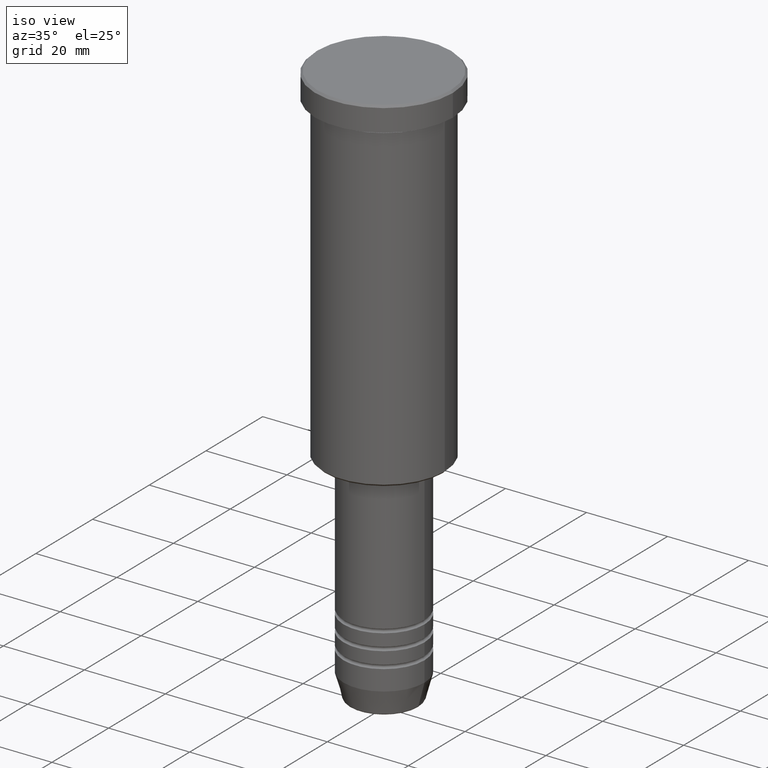
[diagram: clean part render]
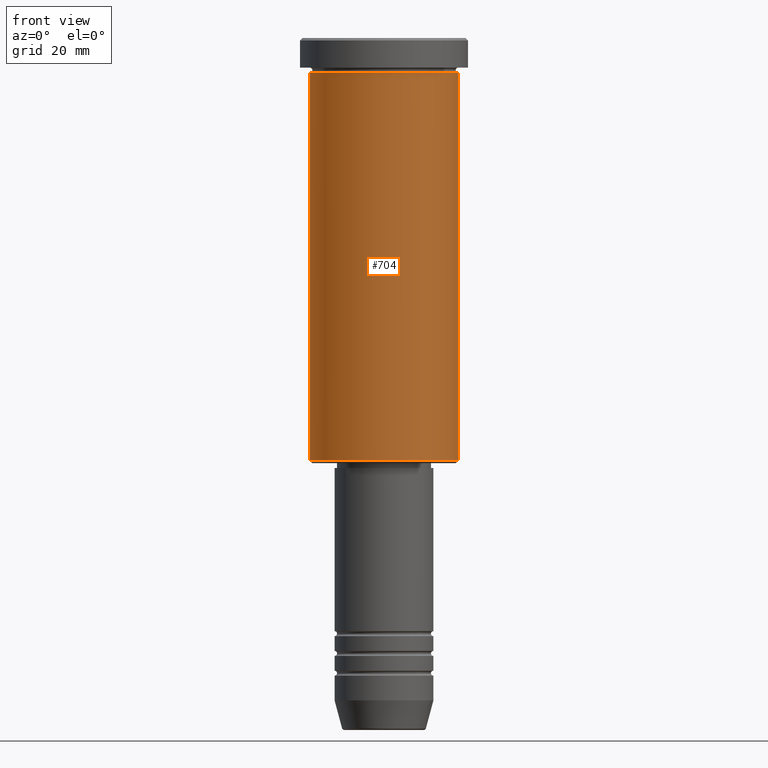
[diagram: tour spotlight — one face highlighted and labeled with its STEP entity id]
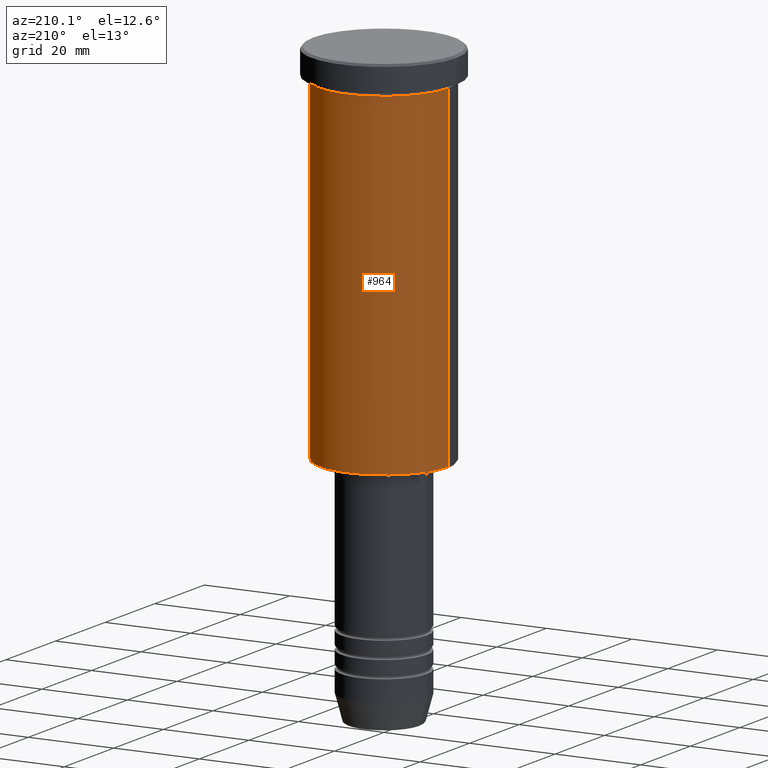
[diagram: tour spotlight — one face highlighted and labeled with its STEP entity id]
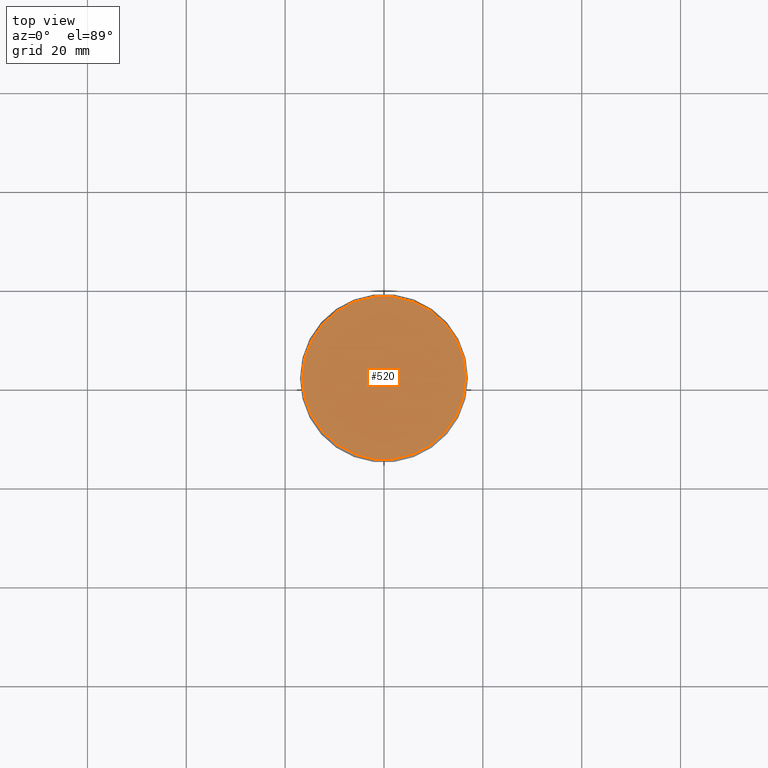
[diagram: tour spotlight — one face highlighted and labeled with its STEP entity id]
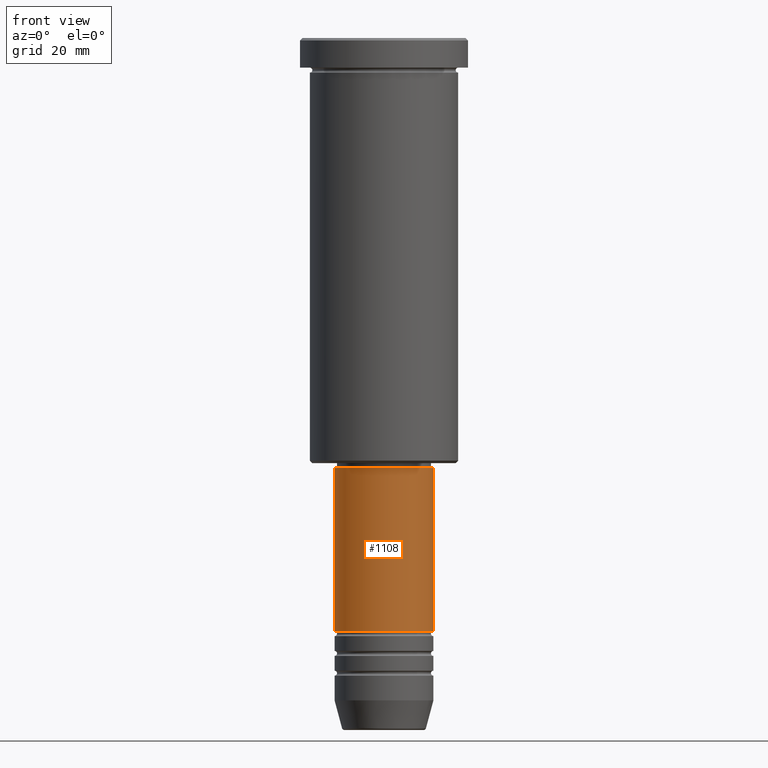
[diagram: tour spotlight — one face highlighted and labeled with its STEP entity id]
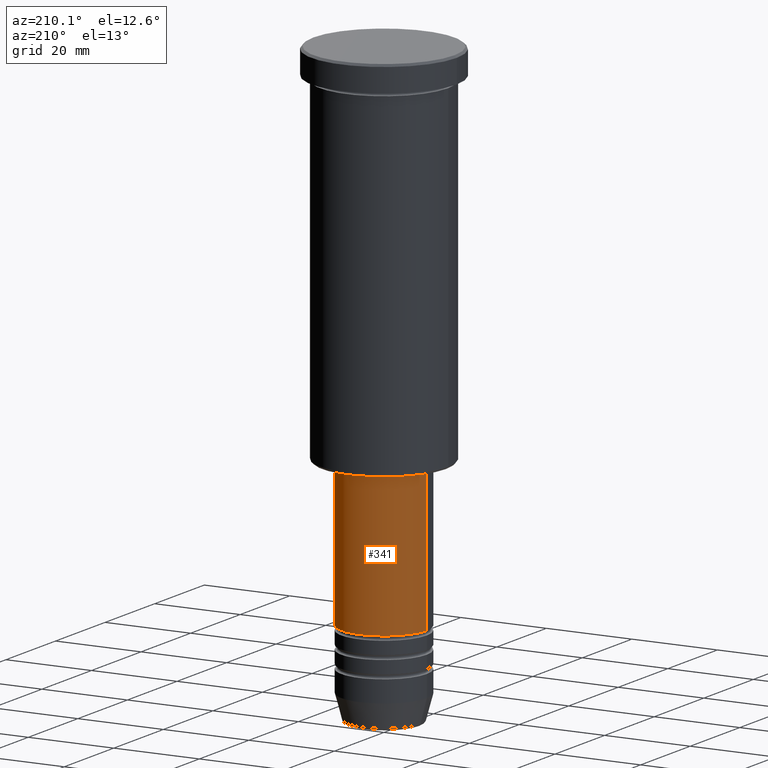
[diagram: tour spotlight — one face highlighted and labeled with its STEP entity id]
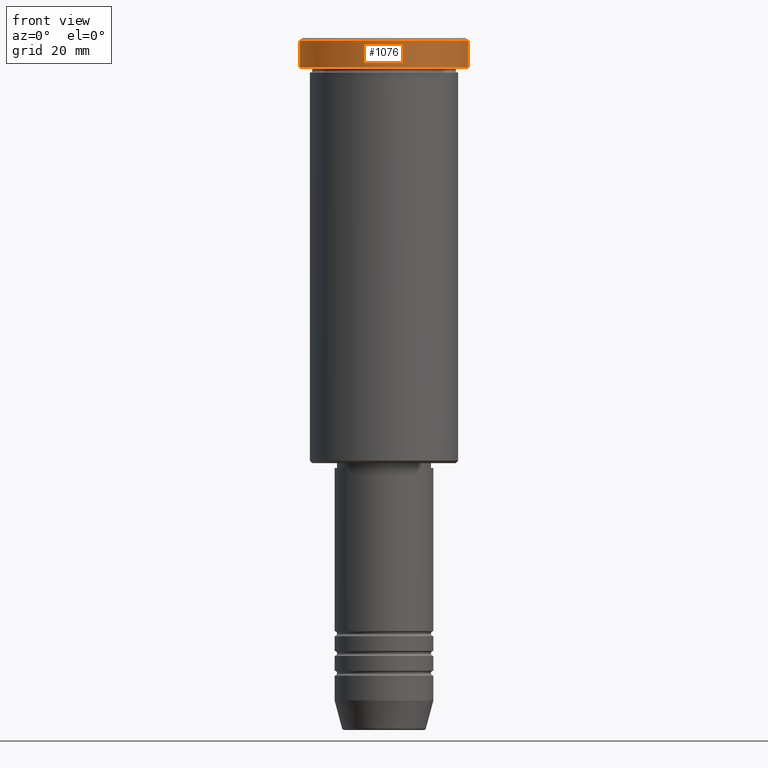
[diagram: tour spotlight — one face highlighted and labeled with its STEP entity id]
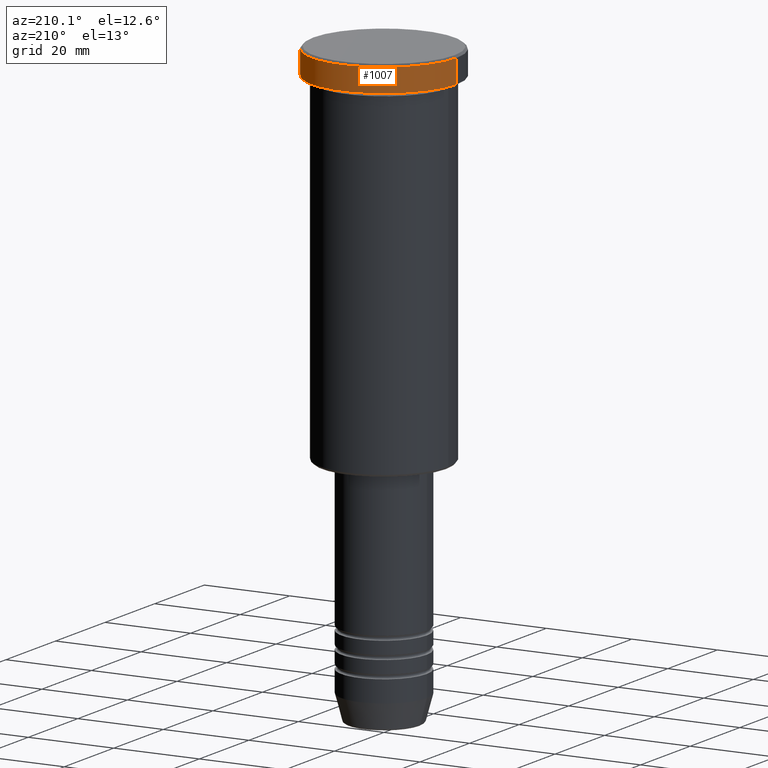
[diagram: tour spotlight — one face highlighted and labeled with its STEP entity id]
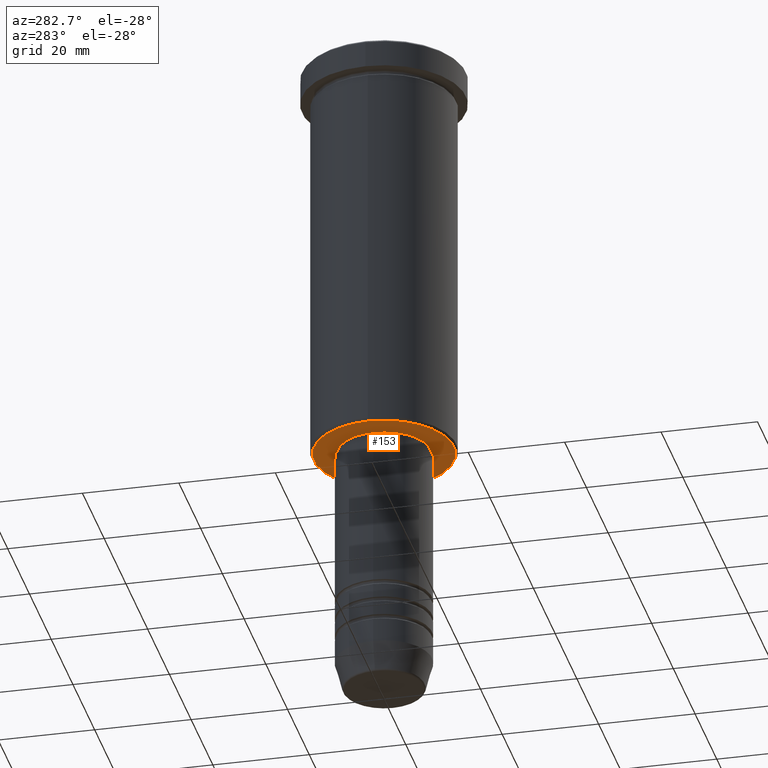
[diagram: tour spotlight — one face highlighted and labeled with its STEP entity id]
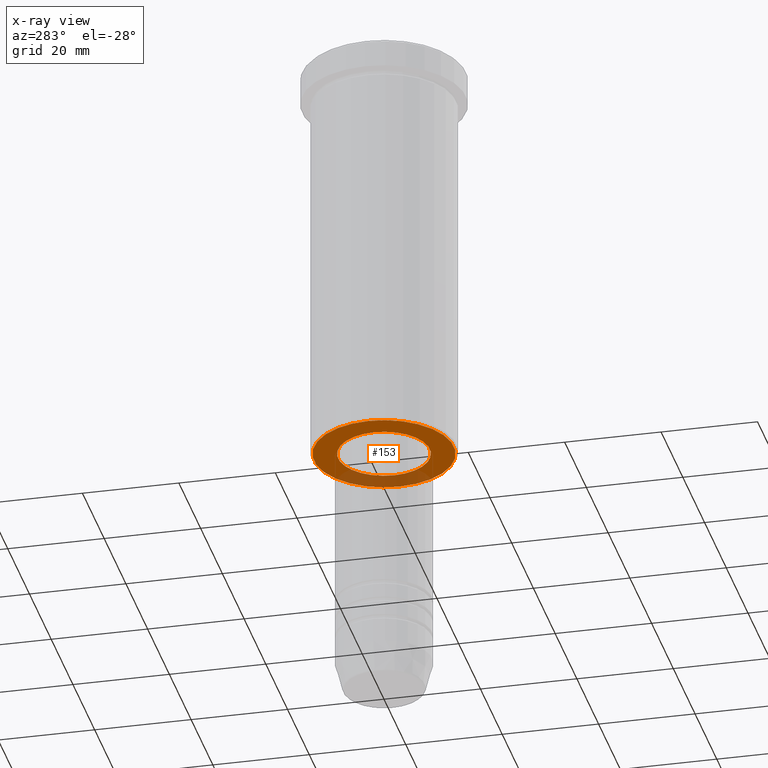
[diagram: x-ray of the same camera — body ghosted, this tour face saturated]
A machine part: a face-by-face anatomy tour. The part has 43 B-rep faces; the first image is the clean iso view, then the 8 largest visible faces are spotlighted one at a time (largest first), each with its STEP entity span.

Face 1 — front view, entity #704. In plain terms, the highlighted cylindrical surface (partial cylindrical patch) has radius 15 mm, axis along (-0, -0, 1).
Definition (entity closure, byte-faithful):
#3 = VERTEX_POINT ( 'NONE', #241 ) ;
#34 = CARTESIAN_POINT ( 'NONE',  ( 0.000000000000000000, 0.000000000000000000, -6.999999999999995559 ) ) ;
#82 = EDGE_CURVE ( 'NONE', #207, #512, #699, .T. ) ;
#161 = CARTESIAN_POINT ( 'NONE',  ( 15.00000000000000000, 0.000000000000000000, -6.999999999999995559 ) ) ;
#194 = FACE_OUTER_BOUND ( 'NONE', #827, .T. ) ;
#207 = VERTEX_POINT ( 'NONE', #1134 ) ;
#220 = ORIENTED_EDGE ( 'NONE', *, *, #82, .F. ) ;
#241 = CARTESIAN_POINT ( 'NONE',  ( 15.00000000000000000, 0.000000000000000000, -85.50000000000000000 ) ) ;
#280 = EDGE_CURVE ( 'NONE', #3, #512, #1126, .T. ) ;
#281 = DIRECTION ( 'NONE',  ( -0.000000000000000000, -0.000000000000000000, 1.000000000000000000 ) ) ;
#290 = VECTOR ( 'NONE', #691, 1000.000000000000000 ) ;
#300 = CARTESIAN_POINT ( 'NONE',  ( 0.000000000000000000, 0.000000000000000000, -85.50000000000000000 ) ) ;
#359 = LINE ( 'NONE', #836, #1181 ) ;
#373 = DIRECTION ( 'NONE',  ( 1.000000000000000000, 0.000000000000000000, 0.000000000000000000 ) ) ;
#378 = CIRCLE ( 'NONE', #499, 15.00000000000000000 ) ;
#425 = DIRECTION ( 'NONE',  ( -0.000000000000000000, -0.000000000000000000, 1.000000000000000000 ) ) ;
#429 = EDGE_CURVE ( 'NONE', #440, #3, #378, .T. ) ;
#440 = VERTEX_POINT ( 'NONE', #797 ) ;
#471 = DIRECTION ( 'NONE',  ( -0.000000000000000000, -0.000000000000000000, 1.000000000000000000 ) ) ;
#499 = AXIS2_PLACEMENT_3D ( 'NONE', #300, #425, #596 ) ;
#512 = VERTEX_POINT ( 'NONE', #161 ) ;
#596 = DIRECTION ( 'NONE',  ( -1.000000000000000000, 0.000000000000000000, 0.000000000000000000 ) ) ;
#609 = ORIENTED_EDGE ( 'NONE', *, *, #975, .F. ) ;
#610 = DIRECTION ( 'NONE',  ( 1.000000000000000000, 0.000000000000000000, 0.000000000000000000 ) ) ;
#663 = AXIS2_PLACEMENT_3D ( 'NONE', #1159, #281, #373 ) ;
#691 = DIRECTION ( 'NONE',  ( -0.000000000000000000, -0.000000000000000000, 1.000000000000000000 ) ) ;
#699 = CIRCLE ( 'NONE', #918, 15.00000000000000000 ) ;
#704 = ADVANCED_FACE ( 'NONE', ( #194 ), #1073, .T. ) ;
#705 = DIRECTION ( 'NONE',  ( -0.000000000000000000, -0.000000000000000000, 1.000000000000000000 ) ) ;
#794 = ORIENTED_EDGE ( 'NONE', *, *, #280, .T. ) ;
#797 = CARTESIAN_POINT ( 'NONE',  ( -15.00000000000000000, 1.836970198721029589E-15, -85.50000000000000000 ) ) ;
#827 = EDGE_LOOP ( 'NONE', ( #609, #957, #794, #220 ) ) ;
#836 = CARTESIAN_POINT ( 'NONE',  ( -15.00000000000000000, 1.836970198721029589E-15, 0.000000000000000000 ) ) ;
#918 = AXIS2_PLACEMENT_3D ( 'NONE', #34, #705, #610 ) ;
#957 = ORIENTED_EDGE ( 'NONE', *, *, #429, .T. ) ;
#975 = EDGE_CURVE ( 'NONE', #440, #207, #359, .T. ) ;
#1054 = CARTESIAN_POINT ( 'NONE',  ( 15.00000000000000000, 0.000000000000000000, 0.000000000000000000 ) ) ;
#1073 = CYLINDRICAL_SURFACE ( 'NONE', #663, 15.00000000000000000 ) ;
#1126 = LINE ( 'NONE', #1054, #290 ) ;
#1134 = CARTESIAN_POINT ( 'NONE',  ( -15.00000000000000000, 1.836970198721029589E-15, -6.999999999999995559 ) ) ;
#1159 = CARTESIAN_POINT ( 'NONE',  ( 0.000000000000000000, 0.000000000000000000, 0.000000000000000000 ) ) ;
#1181 = VECTOR ( 'NONE', #471, 1000.000000000000000 ) ;

Face 2 — auxiliary view, entity #964. In plain terms, the highlighted cylindrical surface (partial cylindrical patch) has radius 15 mm, axis along (-0, -0, 1).
Definition (entity closure, byte-faithful):
#3 = VERTEX_POINT ( 'NONE', #241 ) ;
#24 = ORIENTED_EDGE ( 'NONE', *, *, #975, .T. ) ;
#65 = ORIENTED_EDGE ( 'NONE', *, *, #280, .F. ) ;
#90 = EDGE_CURVE ( 'NONE', #512, #207, #819, .T. ) ;
#150 = CARTESIAN_POINT ( 'NONE',  ( 0.000000000000000000, 0.000000000000000000, -6.999999999999995559 ) ) ;
#161 = CARTESIAN_POINT ( 'NONE',  ( 15.00000000000000000, 0.000000000000000000, -6.999999999999995559 ) ) ;
#180 = CARTESIAN_POINT ( 'NONE',  ( 0.000000000000000000, 0.000000000000000000, 0.000000000000000000 ) ) ;
#205 = CARTESIAN_POINT ( 'NONE',  ( 0.000000000000000000, 0.000000000000000000, -85.50000000000000000 ) ) ;
#207 = VERTEX_POINT ( 'NONE', #1134 ) ;
#241 = CARTESIAN_POINT ( 'NONE',  ( 15.00000000000000000, 0.000000000000000000, -85.50000000000000000 ) ) ;
#275 = CIRCLE ( 'NONE', #934, 15.00000000000000000 ) ;
#280 = EDGE_CURVE ( 'NONE', #3, #512, #1126, .T. ) ;
#290 = VECTOR ( 'NONE', #691, 1000.000000000000000 ) ;
#359 = LINE ( 'NONE', #836, #1181 ) ;
#370 = EDGE_CURVE ( 'NONE', #3, #440, #275, .T. ) ;
#386 = EDGE_LOOP ( 'NONE', ( #1022, #24, #415, #65 ) ) ;
#415 = ORIENTED_EDGE ( 'NONE', *, *, #90, .F. ) ;
#440 = VERTEX_POINT ( 'NONE', #797 ) ;
#471 = DIRECTION ( 'NONE',  ( -0.000000000000000000, -0.000000000000000000, 1.000000000000000000 ) ) ;
#512 = VERTEX_POINT ( 'NONE', #161 ) ;
#528 = CYLINDRICAL_SURFACE ( 'NONE', #835, 15.00000000000000000 ) ;
#558 = AXIS2_PLACEMENT_3D ( 'NONE', #150, #618, #944 ) ;
#570 = DIRECTION ( 'NONE',  ( -0.000000000000000000, -0.000000000000000000, 1.000000000000000000 ) ) ;
#618 = DIRECTION ( 'NONE',  ( -0.000000000000000000, -0.000000000000000000, 1.000000000000000000 ) ) ;
#641 = FACE_OUTER_BOUND ( 'NONE', #386, .T. ) ;
#691 = DIRECTION ( 'NONE',  ( -0.000000000000000000, -0.000000000000000000, 1.000000000000000000 ) ) ;
#765 = DIRECTION ( 'NONE',  ( 1.000000000000000000, 0.000000000000000000, 0.000000000000000000 ) ) ;
#797 = CARTESIAN_POINT ( 'NONE',  ( -15.00000000000000000, 1.836970198721029589E-15, -85.50000000000000000 ) ) ;
#819 = CIRCLE ( 'NONE', #558, 15.00000000000000000 ) ;
#835 = AXIS2_PLACEMENT_3D ( 'NONE', #180, #909, #765 ) ;
#836 = CARTESIAN_POINT ( 'NONE',  ( -15.00000000000000000, 1.836970198721029589E-15, 0.000000000000000000 ) ) ;
#909 = DIRECTION ( 'NONE',  ( -0.000000000000000000, -0.000000000000000000, 1.000000000000000000 ) ) ;
#934 = AXIS2_PLACEMENT_3D ( 'NONE', #205, #570, #936 ) ;
#936 = DIRECTION ( 'NONE',  ( -1.000000000000000000, 0.000000000000000000, 0.000000000000000000 ) ) ;
#944 = DIRECTION ( 'NONE',  ( 1.000000000000000000, 0.000000000000000000, 0.000000000000000000 ) ) ;
#964 = ADVANCED_FACE ( 'NONE', ( #641 ), #528, .T. ) ;
#975 = EDGE_CURVE ( 'NONE', #440, #207, #359, .T. ) ;
#1022 = ORIENTED_EDGE ( 'NONE', *, *, #370, .T. ) ;
#1054 = CARTESIAN_POINT ( 'NONE',  ( 15.00000000000000000, 0.000000000000000000, 0.000000000000000000 ) ) ;
#1126 = LINE ( 'NONE', #1054, #290 ) ;
#1134 = CARTESIAN_POINT ( 'NONE',  ( -15.00000000000000000, 1.836970198721029589E-15, -6.999999999999995559 ) ) ;
#1181 = VECTOR ( 'NONE', #471, 1000.000000000000000 ) ;

Face 3 — top view, entity #520. In plain terms, the highlighted planar face has unit normal (0, -0, 1).
Definition (entity closure, byte-faithful):
#14 = EDGE_LOOP ( 'NONE', ( #917, #47 ) ) ;
#37 = PLANE ( 'NONE',  #662 ) ;
#41 = CARTESIAN_POINT ( 'NONE',  ( 0.000000000000000000, 0.000000000000000000, 0.000000000000000000 ) ) ;
#47 = ORIENTED_EDGE ( 'NONE', *, *, #557, .T. ) ;
#85 = AXIS2_PLACEMENT_3D ( 'NONE', #755, #427, #792 ) ;
#152 = CARTESIAN_POINT ( 'NONE',  ( 16.49999999999998579, 2.051283388571816098E-15, 0.000000000000000000 ) ) ;
#198 = AXIS2_PLACEMENT_3D ( 'NONE', #367, #282, #656 ) ;
#253 = CIRCLE ( 'NONE', #85, 16.49999999999998579 ) ;
#279 = VERTEX_POINT ( 'NONE', #152 ) ;
#282 = DIRECTION ( 'NONE',  ( -0.000000000000000000, -0.000000000000000000, 1.000000000000000000 ) ) ;
#367 = CARTESIAN_POINT ( 'NONE',  ( 0.000000000000000000, 0.000000000000000000, 0.000000000000000000 ) ) ;
#427 = DIRECTION ( 'NONE',  ( -0.000000000000000000, -0.000000000000000000, 1.000000000000000000 ) ) ;
#520 = ADVANCED_FACE ( 'NONE', ( #981 ), #37, .T. ) ;
#557 = EDGE_CURVE ( 'NONE', #279, #740, #253, .T. ) ;
#621 = CARTESIAN_POINT ( 'NONE',  ( -16.49999999999998579, 0.000000000000000000, 0.000000000000000000 ) ) ;
#656 = DIRECTION ( 'NONE',  ( 1.000000000000000000, 0.000000000000000000, 0.000000000000000000 ) ) ;
#662 = AXIS2_PLACEMENT_3D ( 'NONE', #41, #696, #1018 ) ;
#696 = DIRECTION ( 'NONE',  ( 0.000000000000000000, -0.000000000000000000, 1.000000000000000000 ) ) ;
#740 = VERTEX_POINT ( 'NONE', #621 ) ;
#755 = CARTESIAN_POINT ( 'NONE',  ( 0.000000000000000000, 0.000000000000000000, 0.000000000000000000 ) ) ;
#792 = DIRECTION ( 'NONE',  ( 1.000000000000000000, 0.000000000000000000, 0.000000000000000000 ) ) ;
#917 = ORIENTED_EDGE ( 'NONE', *, *, #1083, .T. ) ;
#981 = FACE_OUTER_BOUND ( 'NONE', #14, .T. ) ;
#1018 = DIRECTION ( 'NONE',  ( 1.000000000000000000, 0.000000000000000000, 0.000000000000000000 ) ) ;
#1047 = CIRCLE ( 'NONE', #198, 16.49999999999998579 ) ;
#1083 = EDGE_CURVE ( 'NONE', #740, #279, #1047, .T. ) ;

Face 4 — front view, entity #1108. In plain terms, the highlighted cylindrical surface (partial cylindrical patch) has radius 10 mm, axis along (-0, -0, 1).
Definition (entity closure, byte-faithful):
#7 = CARTESIAN_POINT ( 'NONE',  ( 10.00000000000000000, 0.000000000000000000, 0.000000000000000000 ) ) ;
#9 = DIRECTION ( 'NONE',  ( 1.000000000000000000, 0.000000000000000000, 0.000000000000000000 ) ) ;
#32 = AXIS2_PLACEMENT_3D ( 'NONE', #453, #255, #551 ) ;
#81 = CIRCLE ( 'NONE', #462, 9.999999999999998224 ) ;
#146 = EDGE_CURVE ( 'NONE', #592, #523, #251, .T. ) ;
#155 = VERTEX_POINT ( 'NONE', #565 ) ;
#181 = ORIENTED_EDGE ( 'NONE', *, *, #146, .F. ) ;
#203 = EDGE_CURVE ( 'NONE', #523, #693, #81, .T. ) ;
#251 = LINE ( 'NONE', #813, #1084 ) ;
#255 = DIRECTION ( 'NONE',  ( -0.000000000000000000, -0.000000000000000000, 1.000000000000000000 ) ) ;
#297 = DIRECTION ( 'NONE',  ( -0.000000000000000000, -0.000000000000000000, 1.000000000000000000 ) ) ;
#319 = EDGE_CURVE ( 'NONE', #155, #693, #840, .T. ) ;
#377 = DIRECTION ( 'NONE',  ( -0.000000000000000000, -0.000000000000000000, 1.000000000000000000 ) ) ;
#392 = DIRECTION ( 'NONE',  ( 1.000000000000000000, 0.000000000000000000, 0.000000000000000000 ) ) ;
#395 = EDGE_LOOP ( 'NONE', ( #181, #1109, #538, #450 ) ) ;
#424 = CARTESIAN_POINT ( 'NONE',  ( 0.000000000000000000, 0.000000000000000000, -87.00000000000002842 ) ) ;
#450 = ORIENTED_EDGE ( 'NONE', *, *, #203, .F. ) ;
#453 = CARTESIAN_POINT ( 'NONE',  ( 0.000000000000000000, 0.000000000000000000, -120.0000000000000000 ) ) ;
#456 = CARTESIAN_POINT ( 'NONE',  ( -10.00000000000000178, 1.224646799147353454E-15, -120.0000000000000000 ) ) ;
#462 = AXIS2_PLACEMENT_3D ( 'NONE', #424, #789, #392 ) ;
#523 = VERTEX_POINT ( 'NONE', #669 ) ;
#538 = ORIENTED_EDGE ( 'NONE', *, *, #319, .T. ) ;
#550 = CARTESIAN_POINT ( 'NONE',  ( 9.999999999999998224, 0.000000000000000000, -87.00000000000002842 ) ) ;
#551 = DIRECTION ( 'NONE',  ( 1.000000000000000000, 0.000000000000000000, 0.000000000000000000 ) ) ;
#565 = CARTESIAN_POINT ( 'NONE',  ( 10.00000000000000178, 0.000000000000000000, -120.0000000000000000 ) ) ;
#576 = VECTOR ( 'NONE', #377, 1000.000000000000000 ) ;
#592 = VERTEX_POINT ( 'NONE', #456 ) ;
#649 = CIRCLE ( 'NONE', #32, 10.00000000000000178 ) ;
#669 = CARTESIAN_POINT ( 'NONE',  ( -9.999999999999998224, 1.224646799147353256E-15, -87.00000000000002842 ) ) ;
#682 = AXIS2_PLACEMENT_3D ( 'NONE', #929, #297, #9 ) ;
#693 = VERTEX_POINT ( 'NONE', #550 ) ;
#741 = EDGE_CURVE ( 'NONE', #592, #155, #649, .T. ) ;
#789 = DIRECTION ( 'NONE',  ( -0.000000000000000000, -0.000000000000000000, 1.000000000000000000 ) ) ;
#813 = CARTESIAN_POINT ( 'NONE',  ( -10.00000000000000000, 1.224646799147353256E-15, 0.000000000000000000 ) ) ;
#839 = FACE_OUTER_BOUND ( 'NONE', #395, .T. ) ;
#840 = LINE ( 'NONE', #7, #576 ) ;
#929 = CARTESIAN_POINT ( 'NONE',  ( 0.000000000000000000, 0.000000000000000000, 0.000000000000000000 ) ) ;
#1021 = CYLINDRICAL_SURFACE ( 'NONE', #682, 10.00000000000000000 ) ;
#1084 = VECTOR ( 'NONE', #1151, 1000.000000000000000 ) ;
#1108 = ADVANCED_FACE ( 'NONE', ( #839 ), #1021, .T. ) ;
#1109 = ORIENTED_EDGE ( 'NONE', *, *, #741, .T. ) ;
#1151 = DIRECTION ( 'NONE',  ( -0.000000000000000000, -0.000000000000000000, 1.000000000000000000 ) ) ;

Face 5 — auxiliary view, entity #341. In plain terms, the highlighted cylindrical surface (partial cylindrical patch) has radius 10 mm, axis along (-0, -0, 1).
Definition (entity closure, byte-faithful):
#7 = CARTESIAN_POINT ( 'NONE',  ( 10.00000000000000000, 0.000000000000000000, 0.000000000000000000 ) ) ;
#8 = DIRECTION ( 'NONE',  ( -0.000000000000000000, -0.000000000000000000, 1.000000000000000000 ) ) ;
#67 = DIRECTION ( 'NONE',  ( 1.000000000000000000, 0.000000000000000000, 0.000000000000000000 ) ) ;
#114 = DIRECTION ( 'NONE',  ( 1.000000000000000000, 0.000000000000000000, 0.000000000000000000 ) ) ;
#124 = DIRECTION ( 'NONE',  ( 1.000000000000000000, 0.000000000000000000, 0.000000000000000000 ) ) ;
#127 = EDGE_CURVE ( 'NONE', #693, #523, #134, .T. ) ;
#134 = CIRCLE ( 'NONE', #443, 9.999999999999998224 ) ;
#146 = EDGE_CURVE ( 'NONE', #592, #523, #251, .T. ) ;
#155 = VERTEX_POINT ( 'NONE', #565 ) ;
#162 = AXIS2_PLACEMENT_3D ( 'NONE', #472, #436, #67 ) ;
#221 = ORIENTED_EDGE ( 'NONE', *, *, #146, .T. ) ;
#251 = LINE ( 'NONE', #813, #1084 ) ;
#266 = CYLINDRICAL_SURFACE ( 'NONE', #479, 10.00000000000000000 ) ;
#319 = EDGE_CURVE ( 'NONE', #155, #693, #840, .T. ) ;
#341 = ADVANCED_FACE ( 'NONE', ( #366 ), #266, .T. ) ;
#366 = FACE_OUTER_BOUND ( 'NONE', #856, .T. ) ;
#377 = DIRECTION ( 'NONE',  ( -0.000000000000000000, -0.000000000000000000, 1.000000000000000000 ) ) ;
#436 = DIRECTION ( 'NONE',  ( -0.000000000000000000, -0.000000000000000000, 1.000000000000000000 ) ) ;
#443 = AXIS2_PLACEMENT_3D ( 'NONE', #1125, #806, #124 ) ;
#456 = CARTESIAN_POINT ( 'NONE',  ( -10.00000000000000178, 1.224646799147353454E-15, -120.0000000000000000 ) ) ;
#472 = CARTESIAN_POINT ( 'NONE',  ( 0.000000000000000000, 0.000000000000000000, -120.0000000000000000 ) ) ;
#479 = AXIS2_PLACEMENT_3D ( 'NONE', #643, #8, #114 ) ;
#489 = ORIENTED_EDGE ( 'NONE', *, *, #319, .F. ) ;
#500 = CIRCLE ( 'NONE', #162, 10.00000000000000178 ) ;
#523 = VERTEX_POINT ( 'NONE', #669 ) ;
#550 = CARTESIAN_POINT ( 'NONE',  ( 9.999999999999998224, 0.000000000000000000, -87.00000000000002842 ) ) ;
#565 = CARTESIAN_POINT ( 'NONE',  ( 10.00000000000000178, 0.000000000000000000, -120.0000000000000000 ) ) ;
#576 = VECTOR ( 'NONE', #377, 1000.000000000000000 ) ;
#592 = VERTEX_POINT ( 'NONE', #456 ) ;
#642 = EDGE_CURVE ( 'NONE', #155, #592, #500, .T. ) ;
#643 = CARTESIAN_POINT ( 'NONE',  ( 0.000000000000000000, 0.000000000000000000, 0.000000000000000000 ) ) ;
#669 = CARTESIAN_POINT ( 'NONE',  ( -9.999999999999998224, 1.224646799147353256E-15, -87.00000000000002842 ) ) ;
#693 = VERTEX_POINT ( 'NONE', #550 ) ;
#806 = DIRECTION ( 'NONE',  ( -0.000000000000000000, -0.000000000000000000, 1.000000000000000000 ) ) ;
#813 = CARTESIAN_POINT ( 'NONE',  ( -10.00000000000000000, 1.224646799147353256E-15, 0.000000000000000000 ) ) ;
#840 = LINE ( 'NONE', #7, #576 ) ;
#856 = EDGE_LOOP ( 'NONE', ( #1104, #221, #1032, #489 ) ) ;
#1032 = ORIENTED_EDGE ( 'NONE', *, *, #127, .F. ) ;
#1084 = VECTOR ( 'NONE', #1151, 1000.000000000000000 ) ;
#1104 = ORIENTED_EDGE ( 'NONE', *, *, #642, .T. ) ;
#1125 = CARTESIAN_POINT ( 'NONE',  ( 0.000000000000000000, 0.000000000000000000, -87.00000000000002842 ) ) ;
#1151 = DIRECTION ( 'NONE',  ( -0.000000000000000000, -0.000000000000000000, 1.000000000000000000 ) ) ;

Face 6 — front view, entity #1076. In plain terms, the highlighted cylindrical surface (partial cylindrical patch) has radius 17 mm, axis along (-0, -0, 1).
Definition (entity closure, byte-faithful):
#1 = CARTESIAN_POINT ( 'NONE',  ( 0.000000000000000000, 0.000000000000000000, 0.000000000000000000 ) ) ;
#4 = CARTESIAN_POINT ( 'NONE',  ( 0.000000000000000000, 0.000000000000000000, -5.999999999999994671 ) ) ;
#33 = EDGE_LOOP ( 'NONE', ( #344, #876, #1142, #529 ) ) ;
#40 = VERTEX_POINT ( 'NONE', #1043 ) ;
#200 = DIRECTION ( 'NONE',  ( 1.000000000000000000, 0.000000000000000000, 0.000000000000000000 ) ) ;
#233 = VERTEX_POINT ( 'NONE', #786 ) ;
#238 = DIRECTION ( 'NONE',  ( 1.000000000000000000, 0.000000000000000000, 0.000000000000000000 ) ) ;
#267 = CARTESIAN_POINT ( 'NONE',  ( 0.000000000000000000, 0.000000000000000000, -0.5000000000000350830 ) ) ;
#287 = DIRECTION ( 'NONE',  ( -0.000000000000000000, -0.000000000000000000, 1.000000000000000000 ) ) ;
#304 = EDGE_CURVE ( 'NONE', #1123, #410, #305, .T. ) ;
#305 = CIRCLE ( 'NONE', #444, 17.00000000000000000 ) ;
#344 = ORIENTED_EDGE ( 'NONE', *, *, #1093, .F. ) ;
#410 = VERTEX_POINT ( 'NONE', #1101 ) ;
#444 = AXIS2_PLACEMENT_3D ( 'NONE', #4, #287, #200 ) ;
#475 = LINE ( 'NONE', #842, #702 ) ;
#529 = ORIENTED_EDGE ( 'NONE', *, *, #871, .T. ) ;
#562 = DIRECTION ( 'NONE',  ( -0.000000000000000000, -0.000000000000000000, 1.000000000000000000 ) ) ;
#670 = LINE ( 'NONE', #684, #935 ) ;
#681 = AXIS2_PLACEMENT_3D ( 'NONE', #267, #1152, #238 ) ;
#684 = CARTESIAN_POINT ( 'NONE',  ( 17.00000000000000000, 0.000000000000000000, 0.000000000000000000 ) ) ;
#702 = VECTOR ( 'NONE', #562, 1000.000000000000000 ) ;
#753 = DIRECTION ( 'NONE',  ( -0.000000000000000000, -0.000000000000000000, 1.000000000000000000 ) ) ;
#764 = CIRCLE ( 'NONE', #681, 17.00000000000000000 ) ;
#779 = EDGE_CURVE ( 'NONE', #410, #233, #670, .T. ) ;
#786 = CARTESIAN_POINT ( 'NONE',  ( 17.00000000000000000, 0.000000000000000000, -0.5000000000000350830 ) ) ;
#842 = CARTESIAN_POINT ( 'NONE',  ( -17.00000000000000000, 2.081899558550500280E-15, 0.000000000000000000 ) ) ;
#865 = AXIS2_PLACEMENT_3D ( 'NONE', #1, #753, #1015 ) ;
#871 = EDGE_CURVE ( 'NONE', #233, #40, #764, .T. ) ;
#876 = ORIENTED_EDGE ( 'NONE', *, *, #304, .T. ) ;
#887 = CARTESIAN_POINT ( 'NONE',  ( -17.00000000000000000, 2.081899558550500280E-15, -5.999999999999994671 ) ) ;
#935 = VECTOR ( 'NONE', #1031, 1000.000000000000000 ) ;
#999 = CYLINDRICAL_SURFACE ( 'NONE', #865, 17.00000000000000000 ) ;
#1015 = DIRECTION ( 'NONE',  ( 1.000000000000000000, 0.000000000000000000, 0.000000000000000000 ) ) ;
#1031 = DIRECTION ( 'NONE',  ( -0.000000000000000000, -0.000000000000000000, 1.000000000000000000 ) ) ;
#1043 = CARTESIAN_POINT ( 'NONE',  ( -17.00000000000000000, 2.081899558550500280E-15, -0.5000000000000350830 ) ) ;
#1076 = ADVANCED_FACE ( 'NONE', ( #1085 ), #999, .T. ) ;
#1085 = FACE_OUTER_BOUND ( 'NONE', #33, .T. ) ;
#1093 = EDGE_CURVE ( 'NONE', #1123, #40, #475, .T. ) ;
#1101 = CARTESIAN_POINT ( 'NONE',  ( 17.00000000000000000, 0.000000000000000000, -5.999999999999994671 ) ) ;
#1123 = VERTEX_POINT ( 'NONE', #887 ) ;
#1142 = ORIENTED_EDGE ( 'NONE', *, *, #779, .T. ) ;
#1152 = DIRECTION ( 'NONE',  ( 0.000000000000000000, 0.000000000000000000, -1.000000000000000000 ) ) ;

Face 7 — auxiliary view, entity #1007. In plain terms, the highlighted cylindrical surface (partial cylindrical patch) has radius 17 mm, axis along (-0, -0, 1).
Definition (entity closure, byte-faithful):
#6 = CYLINDRICAL_SURFACE ( 'NONE', #1099, 17.00000000000000000 ) ;
#12 = AXIS2_PLACEMENT_3D ( 'NONE', #796, #963, #946 ) ;
#40 = VERTEX_POINT ( 'NONE', #1043 ) ;
#89 = DIRECTION ( 'NONE',  ( 1.000000000000000000, 0.000000000000000000, 0.000000000000000000 ) ) ;
#110 = CARTESIAN_POINT ( 'NONE',  ( 0.000000000000000000, 0.000000000000000000, 0.000000000000000000 ) ) ;
#233 = VERTEX_POINT ( 'NONE', #786 ) ;
#257 = EDGE_CURVE ( 'NONE', #40, #233, #326, .T. ) ;
#258 = ORIENTED_EDGE ( 'NONE', *, *, #779, .F. ) ;
#272 = EDGE_CURVE ( 'NONE', #410, #1123, #1138, .T. ) ;
#309 = ORIENTED_EDGE ( 'NONE', *, *, #272, .T. ) ;
#320 = EDGE_LOOP ( 'NONE', ( #309, #1082, #716, #258 ) ) ;
#326 = CIRCLE ( 'NONE', #761, 17.00000000000000000 ) ;
#410 = VERTEX_POINT ( 'NONE', #1101 ) ;
#475 = LINE ( 'NONE', #842, #702 ) ;
#509 = CARTESIAN_POINT ( 'NONE',  ( 0.000000000000000000, 0.000000000000000000, -0.5000000000000350830 ) ) ;
#562 = DIRECTION ( 'NONE',  ( -0.000000000000000000, -0.000000000000000000, 1.000000000000000000 ) ) ;
#589 = DIRECTION ( 'NONE',  ( 1.000000000000000000, 0.000000000000000000, 0.000000000000000000 ) ) ;
#670 = LINE ( 'NONE', #684, #935 ) ;
#684 = CARTESIAN_POINT ( 'NONE',  ( 17.00000000000000000, 0.000000000000000000, 0.000000000000000000 ) ) ;
#702 = VECTOR ( 'NONE', #562, 1000.000000000000000 ) ;
#716 = ORIENTED_EDGE ( 'NONE', *, *, #257, .T. ) ;
#761 = AXIS2_PLACEMENT_3D ( 'NONE', #509, #1119, #589 ) ;
#779 = EDGE_CURVE ( 'NONE', #410, #233, #670, .T. ) ;
#786 = CARTESIAN_POINT ( 'NONE',  ( 17.00000000000000000, 0.000000000000000000, -0.5000000000000350830 ) ) ;
#796 = CARTESIAN_POINT ( 'NONE',  ( 0.000000000000000000, 0.000000000000000000, -5.999999999999994671 ) ) ;
#842 = CARTESIAN_POINT ( 'NONE',  ( -17.00000000000000000, 2.081899558550500280E-15, 0.000000000000000000 ) ) ;
#887 = CARTESIAN_POINT ( 'NONE',  ( -17.00000000000000000, 2.081899558550500280E-15, -5.999999999999994671 ) ) ;
#914 = DIRECTION ( 'NONE',  ( -0.000000000000000000, -0.000000000000000000, 1.000000000000000000 ) ) ;
#935 = VECTOR ( 'NONE', #1031, 1000.000000000000000 ) ;
#946 = DIRECTION ( 'NONE',  ( 1.000000000000000000, 0.000000000000000000, 0.000000000000000000 ) ) ;
#963 = DIRECTION ( 'NONE',  ( -0.000000000000000000, -0.000000000000000000, 1.000000000000000000 ) ) ;
#1007 = ADVANCED_FACE ( 'NONE', ( #1172 ), #6, .T. ) ;
#1031 = DIRECTION ( 'NONE',  ( -0.000000000000000000, -0.000000000000000000, 1.000000000000000000 ) ) ;
#1043 = CARTESIAN_POINT ( 'NONE',  ( -17.00000000000000000, 2.081899558550500280E-15, -0.5000000000000350830 ) ) ;
#1082 = ORIENTED_EDGE ( 'NONE', *, *, #1093, .T. ) ;
#1093 = EDGE_CURVE ( 'NONE', #1123, #40, #475, .T. ) ;
#1099 = AXIS2_PLACEMENT_3D ( 'NONE', #110, #914, #89 ) ;
#1101 = CARTESIAN_POINT ( 'NONE',  ( 17.00000000000000000, 0.000000000000000000, -5.999999999999994671 ) ) ;
#1119 = DIRECTION ( 'NONE',  ( 0.000000000000000000, 0.000000000000000000, -1.000000000000000000 ) ) ;
#1123 = VERTEX_POINT ( 'NONE', #887 ) ;
#1138 = CIRCLE ( 'NONE', #12, 17.00000000000000000 ) ;
#1172 = FACE_OUTER_BOUND ( 'NONE', #320, .T. ) ;

Face 8 — auxiliary view, entity #153. An x-ray twin of the same camera follows (body ghosted, this face saturated) — the face is partly hidden behind the body. In plain terms, the highlighted planar face has unit normal (0, 0, -1).
Definition (entity closure, byte-faithful):
#5 = DIRECTION ( 'NONE',  ( -1.000000000000000000, 0.000000000000000000, -0.000000000000000000 ) ) ;
#29 = AXIS2_PLACEMENT_3D ( 'NONE', #339, #66, #5 ) ;
#36 = CIRCLE ( 'NONE', #748, 14.50000000000001066 ) ;
#55 = AXIS2_PLACEMENT_3D ( 'NONE', #317, #322, #686 ) ;
#64 = EDGE_CURVE ( 'NONE', #1124, #860, #288, .T. ) ;
#66 = DIRECTION ( 'NONE',  ( 0.000000000000000000, 0.000000000000000000, -1.000000000000000000 ) ) ;
#99 = DIRECTION ( 'NONE',  ( 1.000000000000000000, 0.000000000000000000, 0.000000000000000000 ) ) ;
#111 = ORIENTED_EDGE ( 'NONE', *, *, #651, .T. ) ;
#137 = EDGE_LOOP ( 'NONE', ( #943, #111 ) ) ;
#153 = ADVANCED_FACE ( 'NONE', ( #159, #718 ), #968, .T. ) ;
#159 = FACE_OUTER_BOUND ( 'NONE', #485, .T. ) ;
#179 = CIRCLE ( 'NONE', #1013, 9.500000000000001776 ) ;
#183 = CARTESIAN_POINT ( 'NONE',  ( 0.000000000000000000, 0.000000000000000000, -86.00000000000000000 ) ) ;
#192 = DIRECTION ( 'NONE',  ( -0.000000000000000000, -0.000000000000000000, 1.000000000000000000 ) ) ;
#234 = DIRECTION ( 'NONE',  ( -0.000000000000000000, -0.000000000000000000, 1.000000000000000000 ) ) ;
#256 = DIRECTION ( 'NONE',  ( 0.000000000000000000, 0.000000000000000000, -1.000000000000000000 ) ) ;
#288 = CIRCLE ( 'NONE', #55, 14.50000000000001066 ) ;
#317 = CARTESIAN_POINT ( 'NONE',  ( 0.000000000000000000, 0.000000000000000000, -86.00000000000000000 ) ) ;
#322 = DIRECTION ( 'NONE',  ( 0.000000000000000000, 0.000000000000000000, -1.000000000000000000 ) ) ;
#339 = CARTESIAN_POINT ( 'NONE',  ( 0.000000000000000000, 15.00000000000000000, -86.00000000000000000 ) ) ;
#365 = AXIS2_PLACEMENT_3D ( 'NONE', #183, #192, #99 ) ;
#423 = CARTESIAN_POINT ( 'NONE',  ( 9.500000000000001776, 0.000000000000000000, -86.00000000000000000 ) ) ;
#433 = CARTESIAN_POINT ( 'NONE',  ( -14.50000000000001066, 1.806354028742346591E-15, -86.00000000000000000 ) ) ;
#448 = DIRECTION ( 'NONE',  ( -1.000000000000000000, 0.000000000000000000, 0.000000000000000000 ) ) ;
#485 = EDGE_LOOP ( 'NONE', ( #942, #776 ) ) ;
#611 = DIRECTION ( 'NONE',  ( 1.000000000000000000, 0.000000000000000000, 0.000000000000000000 ) ) ;
#626 = VERTEX_POINT ( 'NONE', #837 ) ;
#646 = VERTEX_POINT ( 'NONE', #423 ) ;
#651 = EDGE_CURVE ( 'NONE', #626, #646, #179, .T. ) ;
#686 = DIRECTION ( 'NONE',  ( -1.000000000000000000, 0.000000000000000000, 0.000000000000000000 ) ) ;
#718 = FACE_BOUND ( 'NONE', #137, .T. ) ;
#748 = AXIS2_PLACEMENT_3D ( 'NONE', #1147, #256, #448 ) ;
#774 = CARTESIAN_POINT ( 'NONE',  ( 14.50000000000001066, 0.000000000000000000, -86.00000000000000000 ) ) ;
#776 = ORIENTED_EDGE ( 'NONE', *, *, #890, .T. ) ;
#818 = EDGE_CURVE ( 'NONE', #646, #626, #1098, .T. ) ;
#837 = CARTESIAN_POINT ( 'NONE',  ( -9.500000000000001776, 1.163414459189985682E-15, -86.00000000000000000 ) ) ;
#860 = VERTEX_POINT ( 'NONE', #433 ) ;
#890 = EDGE_CURVE ( 'NONE', #860, #1124, #36, .T. ) ;
#942 = ORIENTED_EDGE ( 'NONE', *, *, #64, .T. ) ;
#943 = ORIENTED_EDGE ( 'NONE', *, *, #818, .T. ) ;
#968 = PLANE ( 'NONE',  #29 ) ;
#1013 = AXIS2_PLACEMENT_3D ( 'NONE', #1052, #234, #611 ) ;
#1052 = CARTESIAN_POINT ( 'NONE',  ( 0.000000000000000000, 0.000000000000000000, -86.00000000000000000 ) ) ;
#1098 = CIRCLE ( 'NONE', #365, 9.500000000000001776 ) ;
#1124 = VERTEX_POINT ( 'NONE', #774 ) ;
#1147 = CARTESIAN_POINT ( 'NONE',  ( 0.000000000000000000, 0.000000000000000000, -86.00000000000000000 ) ) ;